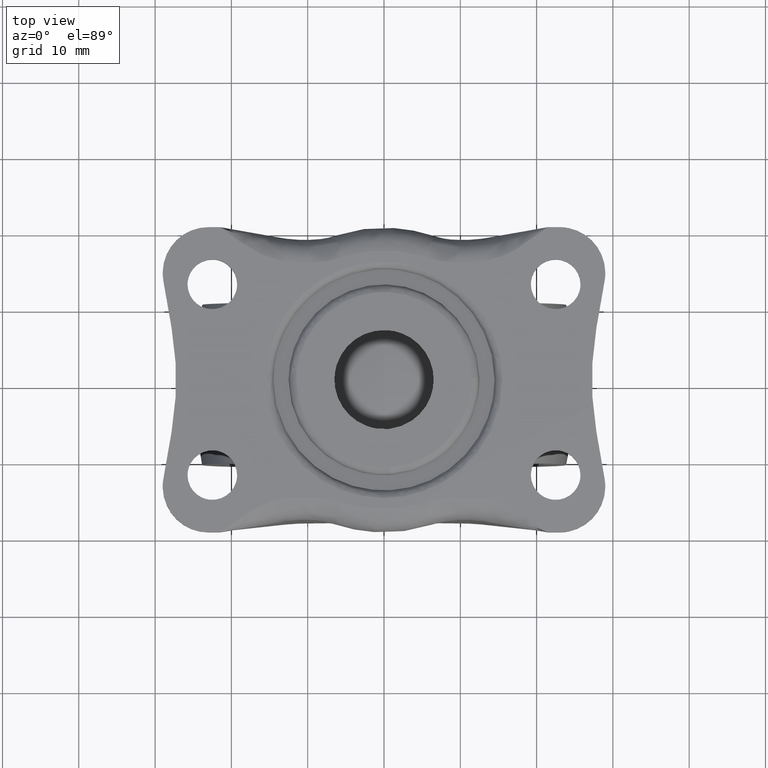
[diagram: clean part render]
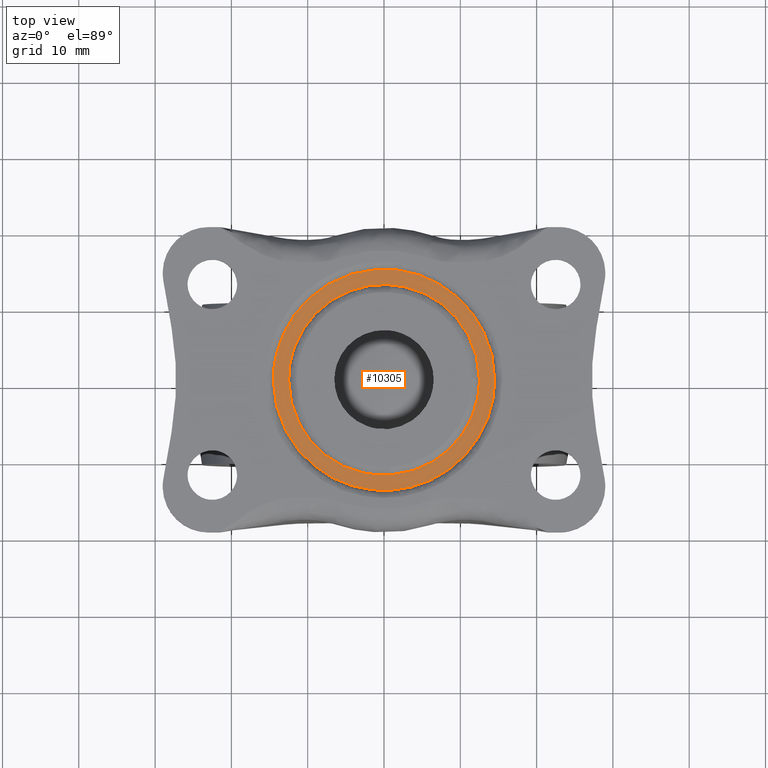
[diagram: same view with one face highlighted and labeled with its STEP entity id]
A machine part, top view. The second image highlights one B-rep face of the part: STEP entity #10305.
In plain terms, the highlighted face is a freeform B-spline surface patch.
Its self-contained STEP definition (entity closure, byte-faithful):
#3902=CARTESIAN_POINT('',(14.500000000000000,0.0,39.0));
#3903=VERTEX_POINT('',#3902);
#3904=CARTESIAN_POINT('',(-1.011132147962923,14.464702270677950,39.000000002512742));
#3905=VERTEX_POINT('',#3904);
#3906=CARTESIAN_POINT('',(14.500000000000000,0.0,39.0));
#3907=CARTESIAN_POINT('',(14.500000000000000,14.500000000000000,39.000000000000007));
#3908=CARTESIAN_POINT('',(0.0,14.500000000000000,39.0));
#3909=CARTESIAN_POINT('',(-0.506182180302766,14.500000000000004,39.0));
#3910=CARTESIAN_POINT('',(-1.011132147962923,14.464702270677945,39.000000002512749));
#3918=(BOUNDED_CURVE()B_SPLINE_CURVE(2,(#3906,#3907,#3908,#3909,#3910),.UNSPECIFIED.,.F.,.U.)B_SPLINE_CURVE_WITH_KNOTS((3,2,3),(0.500000000000000,0.750000000000000,0.762166313467695),.UNSPECIFIED.)CURVE()GEOMETRIC_REPRESENTATION_ITEM()RATIONAL_B_SPLINE_CURVE((1.0,0.707106781186548,1.0,0.985746277149413,0.972879876381081))REPRESENTATION_ITEM(''));
#3919=EDGE_CURVE('',#3903,#3905,#3918,.T.);
#3921=CARTESIAN_POINT('',(-14.498855140955230,-0.182207578316810,39.000000002587548));
#3922=VERTEX_POINT('',#3921);
#3923=CARTESIAN_POINT('',(-14.498855140955222,-0.182207578316810,39.000000002587555));
#3924=CARTESIAN_POINT('',(-14.318922983639867,-14.500000000000002,39.0));
#3925=CARTESIAN_POINT('',(0.0,-14.500000000000000,39.0));
#3926=CARTESIAN_POINT('',(14.500000000000000,-14.500000000000000,39.000000000000007));
#3927=CARTESIAN_POINT('',(14.500000000000000,0.0,39.0));
#3935=(BOUNDED_CURVE()B_SPLINE_CURVE(2,(#3923,#3924,#3925,#3926,#3927),.UNSPECIFIED.,.F.,.U.)B_SPLINE_CURVE_WITH_KNOTS((3,2,3),(0.002215704078471,0.250000000000000,0.500000000000000),.UNSPECIFIED.)CURVE()GEOMETRIC_REPRESENTATION_ITEM()RATIONAL_B_SPLINE_CURVE((0.994854295643555,0.709702639984473,1.0,0.707106781186548,1.0))REPRESENTATION_ITEM(''));
#3936=EDGE_CURVE('',#3922,#3903,#3935,.T.);
#4020=CARTESIAN_POINT('',(-14.500000000000000,0.0,39.0));
#4021=VERTEX_POINT('',#4020);
#4022=CARTESIAN_POINT('',(-1.011132147962923,14.464702270677945,39.000000002512749));
#4023=CARTESIAN_POINT('',(-14.499999999999996,13.521784285142937,39.000000000000007));
#4024=CARTESIAN_POINT('',(-14.500000000000000,0.0,39.0));
#4032=(BOUNDED_CURVE()B_SPLINE_CURVE(2,(#4022,#4023,#4024),.UNSPECIFIED.,.F.,.U.)B_SPLINE_CURVE_WITH_KNOTS((3,3),(0.762166313467695,1.0),.UNSPECIFIED.)CURVE()GEOMETRIC_REPRESENTATION_ITEM()RATIONAL_B_SPLINE_CURVE((0.972879876381081,0.721360504037135,1.0))REPRESENTATION_ITEM(''));
#4033=EDGE_CURVE('',#3905,#4021,#4032,.T.);
#4065=CARTESIAN_POINT('',(-14.500000000000000,0.0,39.0));
#4066=CARTESIAN_POINT('',(-14.499999999999998,-0.091107385890599,39.0));
#4067=CARTESIAN_POINT('',(-14.498855140955222,-0.182207578316810,39.000000002587555));
#4075=(BOUNDED_CURVE()B_SPLINE_CURVE(2,(#4065,#4066,#4067),.UNSPECIFIED.,.F.,.U.)B_SPLINE_CURVE_WITH_KNOTS((3,3),(0.0,0.002215704078471),.UNSPECIFIED.)CURVE()GEOMETRIC_REPRESENTATION_ITEM()RATIONAL_B_SPLINE_CURVE((1.0,0.997404141202075,0.994854295643555))REPRESENTATION_ITEM(''));
#4076=EDGE_CURVE('',#4021,#3922,#4075,.T.);
#4116=CARTESIAN_POINT('',(-12.500000000000000,0.0,39.0));
#4117=VERTEX_POINT('',#4116);
#4118=CARTESIAN_POINT('',(0.871665644719333,-12.469570923003570,39.000000001836369));
#4119=VERTEX_POINT('',#4118);
#4120=CARTESIAN_POINT('',(-12.500000000000000,0.0,39.0));
#4121=CARTESIAN_POINT('',(-12.499999999999998,-12.499999999999998,39.0));
#4122=CARTESIAN_POINT('',(0.0,-12.500000000000000,39.0));
#4123=CARTESIAN_POINT('',(0.436363948460301,-12.500000000000002,39.000000000000007));
#4124=CARTESIAN_POINT('',(0.871665644719333,-12.469570923003566,39.000000001836376));
#4132=(BOUNDED_CURVE()B_SPLINE_CURVE(2,(#4120,#4121,#4122,#4123,#4124),.UNSPECIFIED.,.F.,.U.)B_SPLINE_CURVE_WITH_KNOTS((3,2,3),(0.0,0.250000000000000,0.262166313465591),.UNSPECIFIED.)CURVE()GEOMETRIC_REPRESENTATION_ITEM()RATIONAL_B_SPLINE_CURVE((1.0,0.707106781186547,1.0,0.985746277151878,0.972879876385532))REPRESENTATION_ITEM(''));
#4133=EDGE_CURVE('',#4117,#4119,#4132,.T.);
#4184=CARTESIAN_POINT('',(12.499013052547660,0.157075498545152,39.000000001852833));
#4185=VERTEX_POINT('',#4184);
#4199=CARTESIAN_POINT('',(12.499013052547664,0.157075498545152,39.000000001852840));
#4200=CARTESIAN_POINT('',(12.343899123835010,12.499999999999998,39.0));
#4201=CARTESIAN_POINT('',(0.0,12.500000000000000,39.0));
#4202=CARTESIAN_POINT('',(-12.499999999999998,12.499999999999998,39.0));
#4203=CARTESIAN_POINT('',(-12.500000000000000,0.0,39.0));
#4211=(BOUNDED_CURVE()B_SPLINE_CURVE(2,(#4199,#4200,#4201,#4202,#4203),.UNSPECIFIED.,.F.,.U.)B_SPLINE_CURVE_WITH_KNOTS((3,2,3),(0.502215704078363,0.750000000000000,1.0),.UNSPECIFIED.)CURVE()GEOMETRIC_REPRESENTATION_ITEM()RATIONAL_B_SPLINE_CURVE((0.994854295643802,0.709702639984347,1.0,0.707106781186547,1.0))REPRESENTATION_ITEM(''));
#4212=EDGE_CURVE('',#4185,#4117,#4211,.T.);
#4234=CARTESIAN_POINT('',(12.500000000000000,0.0,39.0));
#4235=VERTEX_POINT('',#4234);
#4236=CARTESIAN_POINT('',(0.871665644719333,-12.469570923003568,39.000000001836369));
#4237=CARTESIAN_POINT('',(12.499999999999998,-11.656710590783431,38.999999999999993));
#4238=CARTESIAN_POINT('',(12.500000000000000,0.0,39.0));
#4246=(BOUNDED_CURVE()B_SPLINE_CURVE(2,(#4236,#4237,#4238),.UNSPECIFIED.,.F.,.U.)B_SPLINE_CURVE_WITH_KNOTS((3,3),(0.262166313465591,0.500000000000000),.UNSPECIFIED.)CURVE()GEOMETRIC_REPRESENTATION_ITEM()RATIONAL_B_SPLINE_CURVE((0.972879876385532,0.721360504034669,1.0))REPRESENTATION_ITEM(''));
#4247=EDGE_CURVE('',#4119,#4235,#4246,.T.);
#4249=CARTESIAN_POINT('',(12.500000000000000,0.0,39.0));
#4250=CARTESIAN_POINT('',(12.500000000000005,0.078540849901871,39.0));
#4251=CARTESIAN_POINT('',(12.499013052547664,0.157075498545152,39.000000001852840));
#4259=(BOUNDED_CURVE()B_SPLINE_CURVE(2,(#4249,#4250,#4251),.UNSPECIFIED.,.F.,.U.)B_SPLINE_CURVE_WITH_KNOTS((3,3),(0.500000000000000,0.502215704078363),.UNSPECIFIED.)CURVE()GEOMETRIC_REPRESENTATION_ITEM()RATIONAL_B_SPLINE_CURVE((1.0,0.997404141202200,0.994854295643802))REPRESENTATION_ITEM(''));
#4260=EDGE_CURVE('',#4235,#4185,#4259,.T.);
#10288=CARTESIAN_POINT('',(-15.948549943792370,15.946799461797550,39.0));
#10289=CARTESIAN_POINT('',(15.948550721632991,15.946799461797550,39.0));
#10290=CARTESIAN_POINT('',(-15.948549943792370,-15.948166001380949,39.0));
#10291=CARTESIAN_POINT('',(15.948550721632991,-15.948166001380949,39.0));
#10292=B_SPLINE_SURFACE_WITH_KNOTS('',1,1,((#10288,#10290),(#10289,#10291)),.UNSPECIFIED.,.F.,.F.,.U.,(2,2),(2,2),(0.0,31.897100665425359),(0.0,31.894965463178501),.UNSPECIFIED.);
#10293=ORIENTED_EDGE('',*,*,#4076,.T.);
#10294=ORIENTED_EDGE('',*,*,#3936,.T.);
#10295=ORIENTED_EDGE('',*,*,#3919,.T.);
#10296=ORIENTED_EDGE('',*,*,#4033,.T.);
#10297=EDGE_LOOP('',(#10293,#10294,#10295,#10296));
#10298=FACE_OUTER_BOUND('',#10297,.T.);
#10299=ORIENTED_EDGE('',*,*,#4260,.F.);
#10300=ORIENTED_EDGE('',*,*,#4247,.F.);
#10301=ORIENTED_EDGE('',*,*,#4133,.F.);
#10302=ORIENTED_EDGE('',*,*,#4212,.F.);
#10303=EDGE_LOOP('',(#10299,#10300,#10301,#10302));
#10304=FACE_BOUND('',#10303,.T.);
#10305=ADVANCED_FACE('',(#10298,#10304),#10292,.F.);